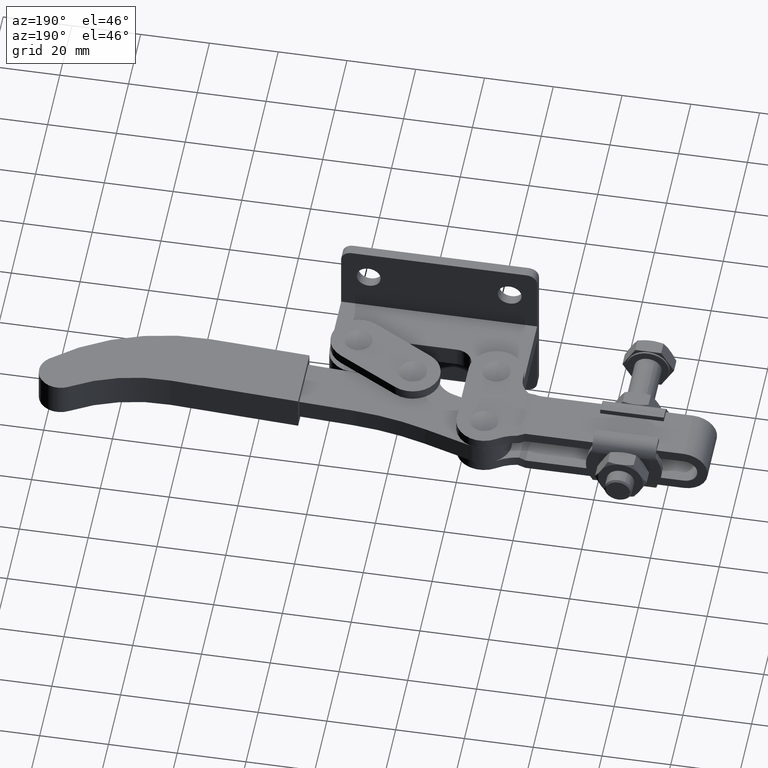
[diagram: clean part render]
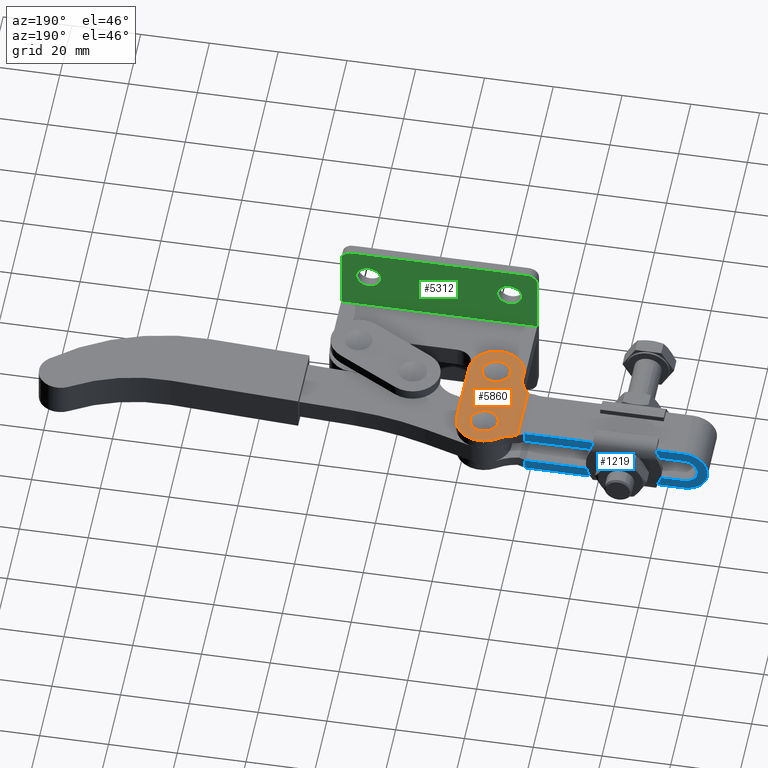
[diagram: same view with three faces highlighted in distinct colors, each labeled with its STEP entity id]
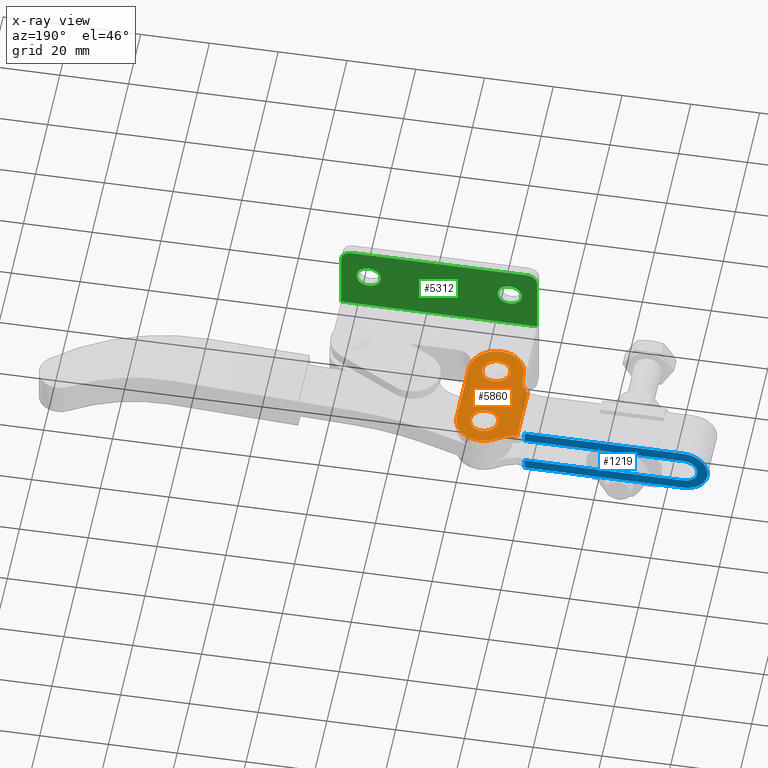
[diagram: x-ray of the same camera — body ghosted, the three highlighted faces saturated]
A machine part, auxiliary view with three faces highlighted in distinct colors.
The next image is the same camera in x-ray (body ghosted, the three faces saturated) — at least one of them is partly hidden behind the body in this view.
Their STEP definitions:

[orange] entity #5860 — the highlighted planar face has unit normal (0, -0, -1).
#54 = CARTESIAN_POINT ( 'NONE',  ( -59.48154258200555900, 49.66259579705754100, 5.999999999999020300 ) ) ;
#144 = LINE ( 'NONE', #5306, #9486 ) ;
#150 = EDGE_CURVE ( 'NONE', #8080, #8859, #5618, .T. ) ;
#286 = DIRECTION ( 'NONE',  ( 9.050980624763911800E-016, -4.542636896133276100E-017, -1.000000000000000000 ) ) ;
#308 = CIRCLE ( 'NONE', #3171, 13.50000000000002700 ) ;
#382 = DIRECTION ( 'NONE',  ( -1.000000000000000000, 0.0000000000000000000, -8.538600900895179800E-016 ) ) ;
#428 = ORIENTED_EDGE ( 'NONE', *, *, #7297, .F. ) ;
#453 = VERTEX_POINT ( 'NONE', #4867 ) ;
#520 = DIRECTION ( 'NONE',  ( 1.000000000000000000, 0.0000000000000000000, 8.673617379884027600E-016 ) ) ;
#562 = FACE_OUTER_BOUND ( 'NONE', #6222, .T. ) ;
#603 = AXIS2_PLACEMENT_3D ( 'NONE', #922, #4319, #3779 ) ;
#763 = DIRECTION ( 'NONE',  ( 1.000000000000000000, 0.0000000000000000000, 8.994862468027870200E-016 ) ) ;
#917 = ORIENTED_EDGE ( 'NONE', *, *, #150, .F. ) ;
#919 = CIRCLE ( 'NONE', #603, 4.063249930781852400 ) ;
#922 = CARTESIAN_POINT ( 'NONE',  ( -49.08154258200799800, 25.49983376949244000, 5.999999999999030100 ) ) ;
#1028 = CIRCLE ( 'NONE', #4305, 4.063249930781845300 ) ;
#1052 = DIRECTION ( 'NONE',  ( 9.050980624763911800E-016, -4.542636896133276100E-017, -1.000000000000000000 ) ) ;
#1101 = CIRCLE ( 'NONE', #1988, 7.999999999999992900 ) ;
#1167 = VERTEX_POINT ( 'NONE', #2564 ) ;
#1194 = DIRECTION ( 'NONE',  ( -9.050980624763911800E-016, 4.542636896133276100E-017, 1.000000000000000000 ) ) ;
#1202 = DIRECTION ( 'NONE',  ( 9.050980624763911800E-016, -4.542636896133276100E-017, -1.000000000000000000 ) ) ;
#1292 = VECTOR ( 'NONE', #5654, 1000.000000000000000 ) ;
#1295 = EDGE_CURVE ( 'NONE', #5271, #453, #1028, .T. ) ;
#1334 = CARTESIAN_POINT ( 'NONE',  ( -41.08154258200801900, 17.49983376949255400, 5.999999999999038100 ) ) ;
#1380 = EDGE_CURVE ( 'NONE', #4788, #8555, #6655, .T. ) ;
#1415 = EDGE_LOOP ( 'NONE', ( #4938, #4256 ) ) ;
#1478 = CARTESIAN_POINT ( 'NONE',  ( -49.08154258200802600, 25.49983376949254000, 5.999999999999030100 ) ) ;
#1480 = VERTEX_POINT ( 'NONE', #9569 ) ;
#1739 = AXIS2_PLACEMENT_3D ( 'NONE', #1334, #9430, #2072 ) ;
#1809 = CARTESIAN_POINT ( 'NONE',  ( -49.08154258200804100, 45.49983376949246100, 5.999999999999029200 ) ) ;
#1988 = AXIS2_PLACEMENT_3D ( 'NONE', #2424, #1202, #4527 ) ;
#2032 = CARTESIAN_POINT ( 'NONE',  ( -64.08154258200815400, 26.99983376949254000, 5.999999999999015900 ) ) ;
#2072 = DIRECTION ( 'NONE',  ( 1.000000000000000000, 1.027854634768939000E-031, 9.050980624763909800E-016 ) ) ;
#2192 = ORIENTED_EDGE ( 'NONE', *, *, #7585, .T. ) ;
#2424 = CARTESIAN_POINT ( 'NONE',  ( -49.08154258200802600, 45.49983376949256100, 5.999999999999029200 ) ) ;
#2425 = CARTESIAN_POINT ( 'NONE',  ( -49.08154258200804100, 45.49983376949246100, 5.999999999999029200 ) ) ;
#2427 = CARTESIAN_POINT ( 'NONE',  ( -59.48154258200555900, 32.27619615279952800, 5.999999999999021200 ) ) ;
#2522 = FACE_BOUND ( 'NONE', #1415, .T. ) ;
#2564 = CARTESIAN_POINT ( 'NONE',  ( -49.08154258200799800, 21.43658383871058600, 5.999999999999030100 ) ) ;
#2590 = CARTESIAN_POINT ( 'NONE',  ( -49.08154258200799800, 25.49983376949244000, 5.999999999999030100 ) ) ;
#2709 = EDGE_LOOP ( 'NONE', ( #4505, #2850 ) ) ;
#2850 = ORIENTED_EDGE ( 'NONE', *, *, #1295, .F. ) ;
#3055 = CARTESIAN_POINT ( 'NONE',  ( -57.08154258200804100, 26.99983376949254000, 5.999999999999020300 ) ) ;
#3171 = AXIS2_PLACEMENT_3D ( 'NONE', #9348, #6306, #763 ) ;
#3310 = VERTEX_POINT ( 'NONE', #8652 ) ;
#3387 = CIRCLE ( 'NONE', #6963, 8.000000000000007100 ) ;
#3513 = LINE ( 'NONE', #8849, #8906 ) ;
#3603 = DIRECTION ( 'NONE',  ( -1.000000000000000000, 0.0000000000000000000, -8.538600900895165000E-016 ) ) ;
#3623 = CARTESIAN_POINT ( 'NONE',  ( -59.48154258200555900, 17.49983376949255400, 5.999999999999022100 ) ) ;
#3779 = DIRECTION ( 'NONE',  ( -1.000000000000000000, 0.0000000000000000000, -8.538600900895165000E-016 ) ) ;
#3780 = AXIS2_PLACEMENT_3D ( 'NONE', #2032, #4924, #6815 ) ;
#3826 = DIRECTION ( 'NONE',  ( 1.000000000000000000, 0.0000000000000000000, 8.673617379884027600E-016 ) ) ;
#3937 = CARTESIAN_POINT ( 'NONE',  ( -49.08154258200804100, 41.43658383871061100, 5.999999999999028300 ) ) ;
#4248 = FACE_BOUND ( 'NONE', #2709, .T. ) ;
#4256 = ORIENTED_EDGE ( 'NONE', *, *, #6874, .T. ) ;
#4305 = AXIS2_PLACEMENT_3D ( 'NONE', #2425, #6072, #4656 ) ;
#4319 = DIRECTION ( 'NONE',  ( 9.050980624763911800E-016, -4.542636896133276100E-017, -1.000000000000000000 ) ) ;
#4505 = ORIENTED_EDGE ( 'NONE', *, *, #5832, .F. ) ;
#4527 = DIRECTION ( 'NONE',  ( 1.000000000000000000, 0.0000000000000000000, 8.673617379884043400E-016 ) ) ;
#4656 = DIRECTION ( 'NONE',  ( -1.000000000000000000, 0.0000000000000000000, -8.538600900895179800E-016 ) ) ;
#4674 = EDGE_CURVE ( 'NONE', #5030, #1167, #919, .T. ) ;
#4788 = VERTEX_POINT ( 'NONE', #2427 ) ;
#4810 = CARTESIAN_POINT ( 'NONE',  ( -49.08154258200802600, 25.49983376949254000, 5.999999999999030100 ) ) ;
#4867 = CARTESIAN_POINT ( 'NONE',  ( -49.08154258200804100, 49.56308370027430500, 5.999999999999028300 ) ) ;
#4924 = DIRECTION ( 'NONE',  ( 9.050980624763911800E-016, -4.542636896133276100E-017, -1.000000000000000000 ) ) ;
#4938 = ORIENTED_EDGE ( 'NONE', *, *, #4674, .T. ) ;
#5030 = VERTEX_POINT ( 'NONE', #5686 ) ;
#5160 = DIRECTION ( 'NONE',  ( -0.0000000000000000000, 1.000000000000000000, -4.542636896133274300E-017 ) ) ;
#5181 = PLANE ( 'NONE',  #1739 ) ;
#5253 = EDGE_CURVE ( 'NONE', #4788, #9071, #7118, .T. ) ;
#5262 = ORIENTED_EDGE ( 'NONE', *, *, #8005, .T. ) ;
#5271 = VERTEX_POINT ( 'NONE', #3937 ) ;
#5306 = CARTESIAN_POINT ( 'NONE',  ( -41.08154258200801900, 17.49983376949255400, 5.999999999999038100 ) ) ;
#5618 = CIRCLE ( 'NONE', #6968, 8.000000000000007100 ) ;
#5654 = DIRECTION ( 'NONE',  ( -0.0000000000000000000, 1.000000000000000000, -4.542636896133274300E-017 ) ) ;
#5686 = CARTESIAN_POINT ( 'NONE',  ( -49.08154258200799800, 29.56308370027429800, 5.999999999999030100 ) ) ;
#5832 = EDGE_CURVE ( 'NONE', #453, #5271, #6425, .T. ) ;
#5860 = ADVANCED_FACE ( 'NONE', ( #2522, #4248, #562 ), #5181, .F. ) ;
#6018 = ORIENTED_EDGE ( 'NONE', *, *, #5253, .F. ) ;
#6059 = ORIENTED_EDGE ( 'NONE', *, *, #1380, .T. ) ;
#6066 = CARTESIAN_POINT ( 'NONE',  ( -57.08154258200804100, 25.49983376949254000, 5.999999999999058500 ) ) ;
#6072 = DIRECTION ( 'NONE',  ( -9.050980624763911800E-016, 4.542636896133276100E-017, 1.000000000000000000 ) ) ;
#6133 = ORIENTED_EDGE ( 'NONE', *, *, #8098, .F. ) ;
#6222 = EDGE_LOOP ( 'NONE', ( #2192, #428, #6263, #6018, #6059, #5262, #917, #6133 ) ) ;
#6263 = ORIENTED_EDGE ( 'NONE', *, *, #8411, .T. ) ;
#6306 = DIRECTION ( 'NONE',  ( 9.050980624763911800E-016, -4.542636896133276100E-017, -1.000000000000000000 ) ) ;
#6425 = CIRCLE ( 'NONE', #8064, 4.063249930781845300 ) ;
#6511 = AXIS2_PLACEMENT_3D ( 'NONE', #2590, #1052, #3603 ) ;
#6655 = CIRCLE ( 'NONE', #3780, 7.000000000000062200 ) ;
#6815 = DIRECTION ( 'NONE',  ( 1.000000000000000000, 0.0000000000000000000, 8.673617379883958600E-016 ) ) ;
#6825 = VERTEX_POINT ( 'NONE', #7406 ) ;
#6874 = EDGE_CURVE ( 'NONE', #1167, #5030, #8595, .T. ) ;
#6963 = AXIS2_PLACEMENT_3D ( 'NONE', #1478, #8791, #3826 ) ;
#6968 = AXIS2_PLACEMENT_3D ( 'NONE', #4810, #286, #520 ) ;
#7118 = LINE ( 'NONE', #3623, #1292 ) ;
#7297 = EDGE_CURVE ( 'NONE', #1480, #3310, #1101, .T. ) ;
#7406 = CARTESIAN_POINT ( 'NONE',  ( -41.08154258200801900, 25.49983376949254000, 5.999999999999036300 ) ) ;
#7585 = EDGE_CURVE ( 'NONE', #6825, #3310, #144, .T. ) ;
#7641 = CARTESIAN_POINT ( 'NONE',  ( -49.08154258200803400, 17.49983376949253300, 5.999999999999030100 ) ) ;
#8005 = EDGE_CURVE ( 'NONE', #8555, #8859, #3513, .T. ) ;
#8064 = AXIS2_PLACEMENT_3D ( 'NONE', #1809, #1194, #382 ) ;
#8080 = VERTEX_POINT ( 'NONE', #7641 ) ;
#8098 = EDGE_CURVE ( 'NONE', #6825, #8080, #3387, .T. ) ;
#8411 = EDGE_CURVE ( 'NONE', #1480, #9071, #308, .T. ) ;
#8555 = VERTEX_POINT ( 'NONE', #3055 ) ;
#8595 = CIRCLE ( 'NONE', #6511, 4.063249930781852400 ) ;
#8652 = CARTESIAN_POINT ( 'NONE',  ( -41.08154258200801900, 45.49983376949256100, 5.999999999999035400 ) ) ;
#8791 = DIRECTION ( 'NONE',  ( 9.050980624763911800E-016, -4.542636896133276100E-017, -1.000000000000000000 ) ) ;
#8849 = CARTESIAN_POINT ( 'NONE',  ( -57.08154258200804100, 17.49983376949255400, 5.999999999999023900 ) ) ;
#8859 = VERTEX_POINT ( 'NONE', #6066 ) ;
#8906 = VECTOR ( 'NONE', #9518, 1000.000000000000000 ) ;
#9071 = VERTEX_POINT ( 'NONE', #54 ) ;
#9348 = CARTESIAN_POINT ( 'NONE',  ( -61.57153857880482000, 62.99983376949261100, 5.999999999999018600 ) ) ;
#9430 = DIRECTION ( 'NONE',  ( 9.050980624763909800E-016, -4.542636896133276100E-017, -1.000000000000000000 ) ) ;
#9486 = VECTOR ( 'NONE', #5160, 1000.000000000000000 ) ;
#9518 = DIRECTION ( 'NONE',  ( 0.0000000000000000000, -1.000000000000000000, 4.542636896133274300E-017 ) ) ;
#9569 = CARTESIAN_POINT ( 'NONE',  ( -53.72898295290917800, 52.01146167646928800, 5.999999999999039000 ) ) ;

[blue] entity #1219 — the highlighted planar face has unit normal (0, -1, 0).
#45 = LINE ( 'NONE', #5217, #7623 ) ;
#51 = VECTOR ( 'NONE', #4503, 1000.000000000000000 ) ;
#116 = ORIENTED_EDGE ( 'NONE', *, *, #2843, .T. ) ;
#184 = EDGE_CURVE ( 'NONE', #2795, #7741, #2183, .T. ) ;
#300 = LINE ( 'NONE', #315, #51 ) ;
#315 = CARTESIAN_POINT ( 'NONE',  ( -61.85154258200779500, 49.49983376949262500, -3.999999999999976500 ) ) ;
#829 = LINE ( 'NONE', #2377, #4533 ) ;
#1144 = DIRECTION ( 'NONE',  ( -1.000000000000000000, -1.734723475976805500E-015, 1.357584732276269200E-015 ) ) ;
#1219 = ADVANCED_FACE ( 'NONE', ( #2474 ), #8545, .F. ) ;
#1305 = DIRECTION ( 'NONE',  ( 1.000000000000000000, 1.041289571614397400E-015, -1.516070822380803000E-016 ) ) ;
#1597 = EDGE_LOOP ( 'NONE', ( #8194, #9143, #8207, #5178, #6194, #3236, #2234, #1771, #116, #6479, #2532, #3404, #8766 ) ) ;
#1771 = ORIENTED_EDGE ( 'NONE', *, *, #2298, .F. ) ;
#1788 = CARTESIAN_POINT ( 'NONE',  ( -61.57153857880461300, 49.49983376949262500, -6.928887109687424900 ) ) ;
#2004 = VERTEX_POINT ( 'NONE', #6416 ) ;
#2006 = DIRECTION ( 'NONE',  ( 1.357584732276269800E-015, 4.542636896133276100E-017, 1.000000000000000000 ) ) ;
#2132 = DIRECTION ( 'NONE',  ( -1.000000000000000000, -1.734723475976805500E-015, 1.357584732276269200E-015 ) ) ;
#2183 = LINE ( 'NONE', #8912, #4141 ) ;
#2193 = VECTOR ( 'NONE', #2835, 1000.000000000000000 ) ;
#2234 = ORIENTED_EDGE ( 'NONE', *, *, #6752, .F. ) ;
#2259 = CIRCLE ( 'NONE', #3432, 4.000000000000003600 ) ;
#2298 = EDGE_CURVE ( 'NONE', #3579, #2413, #9494, .T. ) ;
#2377 = CARTESIAN_POINT ( 'NONE',  ( -61.73154258200789000, 49.49983376949262500, 6.999999999999921000 ) ) ;
#2400 = DIRECTION ( 'NONE',  ( -0.9138115486202749200, -9.330930401907641100E-016, 0.4061384660534075300 ) ) ;
#2413 = VERTEX_POINT ( 'NONE', #3219 ) ;
#2474 = FACE_OUTER_BOUND ( 'NONE', #1597, .T. ) ;
#2532 = ORIENTED_EDGE ( 'NONE', *, *, #3466, .F. ) ;
#2578 = AXIS2_PLACEMENT_3D ( 'NONE', #8867, #6356, #9460 ) ;
#2586 = AXIS2_PLACEMENT_3D ( 'NONE', #2616, #4606, #2132 ) ;
#2616 = CARTESIAN_POINT ( 'NONE',  ( -107.8015425820077600, 49.49983376949257500, -2.230932654518684200E-014 ) ) ;
#2640 = DIRECTION ( 'NONE',  ( 1.000000000000000000, 1.041289571614397600E-015, 1.048098961386047500E-015 ) ) ;
#2669 = CARTESIAN_POINT ( 'NONE',  ( -61.85154258200778100, 49.49983376949262500, 3.999999999999988900 ) ) ;
#2795 = VERTEX_POINT ( 'NONE', #3871 ) ;
#2835 = DIRECTION ( 'NONE',  ( 1.357584732276269800E-015, 4.542636896133276100E-017, 1.000000000000000000 ) ) ;
#2843 = EDGE_CURVE ( 'NONE', #3579, #4760, #3409, .T. ) ;
#3219 = CARTESIAN_POINT ( 'NONE',  ( -61.73154258200787600, 49.49983376949262500, -6.999999999999981300 ) ) ;
#3236 = ORIENTED_EDGE ( 'NONE', *, *, #5175, .F. ) ;
#3404 = ORIENTED_EDGE ( 'NONE', *, *, #9067, .F. ) ;
#3409 = CIRCLE ( 'NONE', #6250, 7.000000000000006200 ) ;
#3432 = AXIS2_PLACEMENT_3D ( 'NONE', #6788, #8616, #1144 ) ;
#3466 = EDGE_CURVE ( 'NONE', #2004, #8580, #5004, .T. ) ;
#3579 = VERTEX_POINT ( 'NONE', #6439 ) ;
#3589 = CIRCLE ( 'NONE', #2586, 4.000000000000003600 ) ;
#3699 = CARTESIAN_POINT ( 'NONE',  ( -111.8015425820077700, 49.49983376949256800, -1.652693325663141600E-014 ) ) ;
#3723 = EDGE_CURVE ( 'NONE', #8165, #7695, #8405, .T. ) ;
#3871 = CARTESIAN_POINT ( 'NONE',  ( -61.57153857880461300, 49.49983376949262500, -3.851456762226395100 ) ) ;
#3872 = CARTESIAN_POINT ( 'NONE',  ( -61.57153857880459200, 49.49983376949262500, 3.851456762226385800 ) ) ;
#3873 = DIRECTION ( 'NONE',  ( -0.8833886167317847000, -9.411520212564469200E-016, -0.4686411759851069100 ) ) ;
#4115 = VECTOR ( 'NONE', #8215, 999.9999999999998900 ) ;
#4141 = VECTOR ( 'NONE', #3873, 1000.000000000000000 ) ;
#4354 = CARTESIAN_POINT ( 'NONE',  ( -107.8015425820077600, 49.49983376949257500, -4.000000000000025800 ) ) ;
#4503 = DIRECTION ( 'NONE',  ( -1.000000000000000000, -1.041289571614397600E-015, -1.054370567800108400E-015 ) ) ;
#4533 = VECTOR ( 'NONE', #5489, 1000.000000000000000 ) ;
#4606 = DIRECTION ( 'NONE',  ( 1.041289571614397400E-015, -1.000000000000000000, 4.542636896133133100E-017 ) ) ;
#4622 = CARTESIAN_POINT ( 'NONE',  ( -61.73154258200785400, 49.49983376949262500, 6.999999999999921000 ) ) ;
#4760 = VERTEX_POINT ( 'NONE', #5938 ) ;
#5004 = LINE ( 'NONE', #9203, #8901 ) ;
#5034 = VECTOR ( 'NONE', #5619, 999.9999999999998900 ) ;
#5175 = EDGE_CURVE ( 'NONE', #5230, #2795, #6315, .T. ) ;
#5178 = ORIENTED_EDGE ( 'NONE', *, *, #8769, .F. ) ;
#5217 = CARTESIAN_POINT ( 'NONE',  ( -61.57153857880463500, 49.49983376949262500, -23.00000000000008500 ) ) ;
#5230 = VERTEX_POINT ( 'NONE', #1788 ) ;
#5363 = EDGE_CURVE ( 'NONE', #8165, #6976, #3589, .T. ) ;
#5489 = DIRECTION ( 'NONE',  ( -1.000000000000000000, -1.041289571614397400E-015, 1.357584732276268800E-015 ) ) ;
#5496 = DIRECTION ( 'NONE',  ( -1.041289571614397400E-015, 1.000000000000000000, -4.542636896133133100E-017 ) ) ;
#5619 = DIRECTION ( 'NONE',  ( 0.8833886167317892600, 8.985746873149086500E-016, -0.4686411759850984100 ) ) ;
#5932 = CARTESIAN_POINT ( 'NONE',  ( -61.85154258200776000, 49.49983376949262500, 3.999999999999976500 ) ) ;
#5938 = CARTESIAN_POINT ( 'NONE',  ( -107.8015425820077400, 49.49983376949258200, 6.999999999999984000 ) ) ;
#5979 = VERTEX_POINT ( 'NONE', #4354 ) ;
#5982 = CARTESIAN_POINT ( 'NONE',  ( -61.73154258200789700, 49.49983376949262500, -6.999999999999992000 ) ) ;
#6194 = ORIENTED_EDGE ( 'NONE', *, *, #184, .F. ) ;
#6250 = AXIS2_PLACEMENT_3D ( 'NONE', #6887, #5496, #8929 ) ;
#6274 = LINE ( 'NONE', #5982, #4115 ) ;
#6315 = LINE ( 'NONE', #8943, #2193 ) ;
#6356 = DIRECTION ( 'NONE',  ( 1.041289571614397400E-015, -1.000000000000000000, 4.542636896133133700E-017 ) ) ;
#6416 = CARTESIAN_POINT ( 'NONE',  ( -61.57153857880459200, 49.49983376949262500, 6.928887109687363700 ) ) ;
#6439 = CARTESIAN_POINT ( 'NONE',  ( -107.8015425820077700, 49.49983376949258200, -7.000000000000028400 ) ) ;
#6479 = ORIENTED_EDGE ( 'NONE', *, *, #8168, .F. ) ;
#6752 = EDGE_CURVE ( 'NONE', #2413, #5230, #6274, .T. ) ;
#6788 = CARTESIAN_POINT ( 'NONE',  ( -107.8015425820077600, 49.49983376949257500, -2.230932654518684200E-014 ) ) ;
#6887 = CARTESIAN_POINT ( 'NONE',  ( -107.8015425820077600, 49.49983376949258200, -2.230932654518684200E-014 ) ) ;
#6976 = VERTEX_POINT ( 'NONE', #3699 ) ;
#7004 = EDGE_CURVE ( 'NONE', #6976, #5979, #2259, .T. ) ;
#7294 = EDGE_CURVE ( 'NONE', #7695, #7367, #8938, .T. ) ;
#7367 = VERTEX_POINT ( 'NONE', #3872 ) ;
#7623 = VECTOR ( 'NONE', #2006, 1000.000000000000000 ) ;
#7676 = CARTESIAN_POINT ( 'NONE',  ( -61.85154258200777400, 49.49983376949262500, -3.999999999999976500 ) ) ;
#7695 = VERTEX_POINT ( 'NONE', #5932 ) ;
#7732 = VECTOR ( 'NONE', #2640, 1000.000000000000000 ) ;
#7741 = VERTEX_POINT ( 'NONE', #7676 ) ;
#8049 = CARTESIAN_POINT ( 'NONE',  ( -61.73154258200790400, 49.49983376949262500, -6.999999999999980500 ) ) ;
#8124 = CARTESIAN_POINT ( 'NONE',  ( -107.8015425820077600, 49.49983376949257500, 3.999999999999980900 ) ) ;
#8165 = VERTEX_POINT ( 'NONE', #8124 ) ;
#8168 = EDGE_CURVE ( 'NONE', #8580, #4760, #829, .T. ) ;
#8173 = VECTOR ( 'NONE', #1305, 1000.000000000000000 ) ;
#8194 = ORIENTED_EDGE ( 'NONE', *, *, #3723, .F. ) ;
#8207 = ORIENTED_EDGE ( 'NONE', *, *, #7004, .T. ) ;
#8215 = DIRECTION ( 'NONE',  ( 0.9138115486202682500, 9.699918318074200400E-016, 0.4061384660534228000 ) ) ;
#8405 = LINE ( 'NONE', #9455, #8173 ) ;
#8545 = PLANE ( 'NONE',  #2578 ) ;
#8580 = VERTEX_POINT ( 'NONE', #4622 ) ;
#8616 = DIRECTION ( 'NONE',  ( 1.041289571614397400E-015, -1.000000000000000000, 4.542636896133133100E-017 ) ) ;
#8766 = ORIENTED_EDGE ( 'NONE', *, *, #7294, .F. ) ;
#8769 = EDGE_CURVE ( 'NONE', #7741, #5979, #300, .T. ) ;
#8867 = CARTESIAN_POINT ( 'NONE',  ( -139.5659073902300500, 49.49983376949254000, -22.99999999999997900 ) ) ;
#8901 = VECTOR ( 'NONE', #2400, 1000.000000000000100 ) ;
#8912 = CARTESIAN_POINT ( 'NONE',  ( -61.85154258200779500, 49.49983376949262500, -3.999999999999990700 ) ) ;
#8929 = DIRECTION ( 'NONE',  ( 1.000000000000000000, 9.912705577010316700E-016, -1.357584732276269200E-015 ) ) ;
#8938 = LINE ( 'NONE', #2669, #5034 ) ;
#8943 = CARTESIAN_POINT ( 'NONE',  ( -61.57153857880463500, 49.49983376949262500, -23.00000000000008500 ) ) ;
#9067 = EDGE_CURVE ( 'NONE', #7367, #2004, #45, .T. ) ;
#9143 = ORIENTED_EDGE ( 'NONE', *, *, #5363, .T. ) ;
#9203 = CARTESIAN_POINT ( 'NONE',  ( -61.73154258200788300, 49.49983376949262500, 6.999999999999933400 ) ) ;
#9455 = CARTESIAN_POINT ( 'NONE',  ( -61.85154258200778800, 49.49983376949262500, 3.999999999999975100 ) ) ;
#9460 = DIRECTION ( 'NONE',  ( 1.000000000000000000, 1.041289571614397400E-015, -1.357584732276269000E-015 ) ) ;
#9494 = LINE ( 'NONE', #8049, #7732 ) ;

[green] entity #5312 — the highlighted planar face has unit normal (0, -1, 0).
#302 = CARTESIAN_POINT ( 'NONE',  ( -8.000000000000111900, 3.000000000000000000, 14.49999999999988100 ) ) ;
#325 = CARTESIAN_POINT ( 'NONE',  ( -49.00000000000002800, 3.000000000000000000, 17.99999999999958800 ) ) ;
#351 = EDGE_CURVE ( 'NONE', #1193, #1923, #2538, .T. ) ;
#470 = ORIENTED_EDGE ( 'NONE', *, *, #4460, .F. ) ;
#585 = VECTOR ( 'NONE', #931, 1000.000000000000000 ) ;
#730 = LINE ( 'NONE', #5028, #8311 ) ;
#733 = VERTEX_POINT ( 'NONE', #1719 ) ;
#799 = DIRECTION ( 'NONE',  ( -1.000000000000000000, -0.0000000000000000000, -6.938893903907237800E-015 ) ) ;
#895 = VECTOR ( 'NONE', #1657, 1000.000000000000000 ) ;
#931 = DIRECTION ( 'NONE',  ( 7.108135218636705200E-015, -0.0000000000000000000, -1.000000000000000000 ) ) ;
#945 = AXIS2_PLACEMENT_3D ( 'NONE', #1531, #8075, #2372 ) ;
#1024 = DIRECTION ( 'NONE',  ( 0.0000000000000000000, 0.0000000000000000000, -1.000000000000000000 ) ) ;
#1107 = EDGE_CURVE ( 'NONE', #1923, #2346, #4213, .T. ) ;
#1193 = VERTEX_POINT ( 'NONE', #6744 ) ;
#1235 = ORIENTED_EDGE ( 'NONE', *, *, #1107, .F. ) ;
#1419 = EDGE_CURVE ( 'NONE', #3741, #733, #7800, .T. ) ;
#1531 = CARTESIAN_POINT ( 'NONE',  ( -49.00000000000002800, 3.000000000000000000, 14.49999999999959000 ) ) ;
#1586 = ORIENTED_EDGE ( 'NONE', *, *, #1862, .T. ) ;
#1636 = DIRECTION ( 'NONE',  ( 0.0000000000000000000, -1.000000000000000000, 0.0000000000000000000 ) ) ;
#1637 = CARTESIAN_POINT ( 'NONE',  ( -36.00000000000002800, 2.999999999999999100, 3.000000000000000000 ) ) ;
#1657 = DIRECTION ( 'NONE',  ( -7.108135218636705200E-015, -0.0000000000000000000, 1.000000000000000000 ) ) ;
#1719 = CARTESIAN_POINT ( 'NONE',  ( -8.000000000000111900, 3.000000000000000000, 10.99999999999988100 ) ) ;
#1838 = DIRECTION ( 'NONE',  ( 0.0000000000000000000, -1.000000000000000000, 0.0000000000000000000 ) ) ;
#1862 = EDGE_CURVE ( 'NONE', #733, #3741, #8893, .T. ) ;
#1898 = VERTEX_POINT ( 'NONE', #325 ) ;
#1923 = VERTEX_POINT ( 'NONE', #3343 ) ;
#2093 = DIRECTION ( 'NONE',  ( 0.0000000000000000000, 0.0000000000000000000, -1.000000000000000000 ) ) ;
#2282 = CIRCLE ( 'NONE', #2541, 2.999999999999947200 ) ;
#2346 = VERTEX_POINT ( 'NONE', #8679 ) ;
#2356 = CARTESIAN_POINT ( 'NONE',  ( -3.000000000000037300, 3.000000000000000000, 20.49999999999988600 ) ) ;
#2372 = DIRECTION ( 'NONE',  ( 0.0000000000000000000, 0.0000000000000000000, -1.000000000000000000 ) ) ;
#2408 = EDGE_CURVE ( 'NONE', #4431, #7050, #7063, .T. ) ;
#2509 = CIRCLE ( 'NONE', #945, 3.499999999999999600 ) ;
#2536 = CARTESIAN_POINT ( 'NONE',  ( -8.000000000000111900, 3.000000000000000000, 14.49999999999988100 ) ) ;
#2538 = LINE ( 'NONE', #1637, #7440 ) ;
#2541 = AXIS2_PLACEMENT_3D ( 'NONE', #2356, #1636, #3848 ) ;
#2798 = CARTESIAN_POINT ( 'NONE',  ( -49.00000000000002800, 3.000000000000000000, 10.99999999999959000 ) ) ;
#3343 = CARTESIAN_POINT ( 'NONE',  ( 0.0000000000000000000, 2.999999999999999100, 3.000000000000000000 ) ) ;
#3411 = ORIENTED_EDGE ( 'NONE', *, *, #8753, .T. ) ;
#3709 = CARTESIAN_POINT ( 'NONE',  ( -56.99999999999992900, 3.000000000000000000, 20.49999999999951300 ) ) ;
#3741 = VERTEX_POINT ( 'NONE', #5252 ) ;
#3811 = FACE_BOUND ( 'NONE', #9572, .T. ) ;
#3848 = DIRECTION ( 'NONE',  ( 0.0000000000000000000, 0.0000000000000000000, -1.000000000000000000 ) ) ;
#4213 = LINE ( 'NONE', #6960, #895 ) ;
#4431 = VERTEX_POINT ( 'NONE', #8509 ) ;
#4460 = EDGE_CURVE ( 'NONE', #7050, #1193, #8158, .T. ) ;
#4792 = DIRECTION ( 'NONE',  ( 1.000000000000000000, 0.0000000000000000000, -0.0000000000000000000 ) ) ;
#5028 = CARTESIAN_POINT ( 'NONE',  ( -53.99999999999999300, 3.000000000000000000, 23.49999999999953500 ) ) ;
#5172 = AXIS2_PLACEMENT_3D ( 'NONE', #302, #6212, #9163 ) ;
#5252 = CARTESIAN_POINT ( 'NONE',  ( -8.000000000000111900, 3.000000000000000000, 17.99999999999987900 ) ) ;
#5312 = ADVANCED_FACE ( 'NONE', ( #5965, #3811, #7664 ), #7699, .F. ) ;
#5387 = ORIENTED_EDGE ( 'NONE', *, *, #351, .F. ) ;
#5482 = DIRECTION ( 'NONE',  ( 0.0000000000000000000, -0.0000000000000000000, -1.000000000000000000 ) ) ;
#5513 = CARTESIAN_POINT ( 'NONE',  ( -3.000000000000037300, 3.000000000000000000, 20.49999999999988600 ) ) ;
#5662 = AXIS2_PLACEMENT_3D ( 'NONE', #2536, #1838, #1024 ) ;
#5704 = CARTESIAN_POINT ( 'NONE',  ( -49.00000000000002800, 3.000000000000000000, 14.49999999999959000 ) ) ;
#5802 = EDGE_LOOP ( 'NONE', ( #1586, #7546 ) ) ;
#5886 = EDGE_CURVE ( 'NONE', #2346, #8543, #2282, .T. ) ;
#5965 = FACE_BOUND ( 'NONE', #5802, .T. ) ;
#6212 = DIRECTION ( 'NONE',  ( 0.0000000000000000000, -1.000000000000000000, 0.0000000000000000000 ) ) ;
#6536 = DIRECTION ( 'NONE',  ( 0.0000000000000000000, -1.000000000000000000, 0.0000000000000000000 ) ) ;
#6572 = AXIS2_PLACEMENT_3D ( 'NONE', #8728, #6536, #8102 ) ;
#6744 = CARTESIAN_POINT ( 'NONE',  ( -56.99999999999994300, 2.999999999999999100, 3.000000000000000000 ) ) ;
#6936 = ORIENTED_EDGE ( 'NONE', *, *, #5886, .F. ) ;
#6960 = CARTESIAN_POINT ( 'NONE',  ( -1.457167719820518000E-013, 3.000000000000000000, 20.49999999999990800 ) ) ;
#7050 = VERTEX_POINT ( 'NONE', #3709 ) ;
#7063 = CIRCLE ( 'NONE', #6572, 2.999999999999964500 ) ;
#7248 = CARTESIAN_POINT ( 'NONE',  ( -3.000000000000056800, 3.000000000000000000, 23.49999999999983300 ) ) ;
#7440 = VECTOR ( 'NONE', #4792, 1000.000000000000000 ) ;
#7546 = ORIENTED_EDGE ( 'NONE', *, *, #1419, .T. ) ;
#7637 = CARTESIAN_POINT ( 'NONE',  ( -56.99999999999986500, 3.000000000000000000, 20.49999999999951300 ) ) ;
#7664 = FACE_OUTER_BOUND ( 'NONE', #8268, .T. ) ;
#7667 = EDGE_CURVE ( 'NONE', #8543, #4431, #730, .T. ) ;
#7699 = PLANE ( 'NONE',  #8889 ) ;
#7753 = ORIENTED_EDGE ( 'NONE', *, *, #2408, .F. ) ;
#7771 = DIRECTION ( 'NONE',  ( 0.0000000000000000000, -1.000000000000000000, 0.0000000000000000000 ) ) ;
#7800 = CIRCLE ( 'NONE', #5172, 3.499999999999999600 ) ;
#8045 = DIRECTION ( 'NONE',  ( 0.0000000000000000000, -1.000000000000000000, 0.0000000000000000000 ) ) ;
#8075 = DIRECTION ( 'NONE',  ( 0.0000000000000000000, -1.000000000000000000, 0.0000000000000000000 ) ) ;
#8102 = DIRECTION ( 'NONE',  ( 0.0000000000000000000, 0.0000000000000000000, -1.000000000000000000 ) ) ;
#8158 = LINE ( 'NONE', #7637, #585 ) ;
#8212 = VERTEX_POINT ( 'NONE', #2798 ) ;
#8268 = EDGE_LOOP ( 'NONE', ( #5387, #470, #7753, #8908, #6936, #1235 ) ) ;
#8311 = VECTOR ( 'NONE', #799, 1000.000000000000000 ) ;
#8509 = CARTESIAN_POINT ( 'NONE',  ( -53.99999999999999300, 3.000000000000000000, 23.49999999999953500 ) ) ;
#8543 = VERTEX_POINT ( 'NONE', #7248 ) ;
#8679 = CARTESIAN_POINT ( 'NONE',  ( -1.457167719820518000E-013, 3.000000000000000000, 20.49999999999990800 ) ) ;
#8728 = CARTESIAN_POINT ( 'NONE',  ( -53.99999999999996400, 3.000000000000000000, 20.49999999999950600 ) ) ;
#8753 = EDGE_CURVE ( 'NONE', #8212, #1898, #2509, .T. ) ;
#8889 = AXIS2_PLACEMENT_3D ( 'NONE', #5513, #8045, #5482 ) ;
#8893 = CIRCLE ( 'NONE', #5662, 3.499999999999999600 ) ;
#8900 = ORIENTED_EDGE ( 'NONE', *, *, #9401, .T. ) ;
#8908 = ORIENTED_EDGE ( 'NONE', *, *, #7667, .F. ) ;
#8940 = CIRCLE ( 'NONE', #9281, 3.499999999999999600 ) ;
#9163 = DIRECTION ( 'NONE',  ( 0.0000000000000000000, 0.0000000000000000000, -1.000000000000000000 ) ) ;
#9281 = AXIS2_PLACEMENT_3D ( 'NONE', #5704, #7771, #2093 ) ;
#9401 = EDGE_CURVE ( 'NONE', #1898, #8212, #8940, .T. ) ;
#9572 = EDGE_LOOP ( 'NONE', ( #3411, #8900 ) ) ;